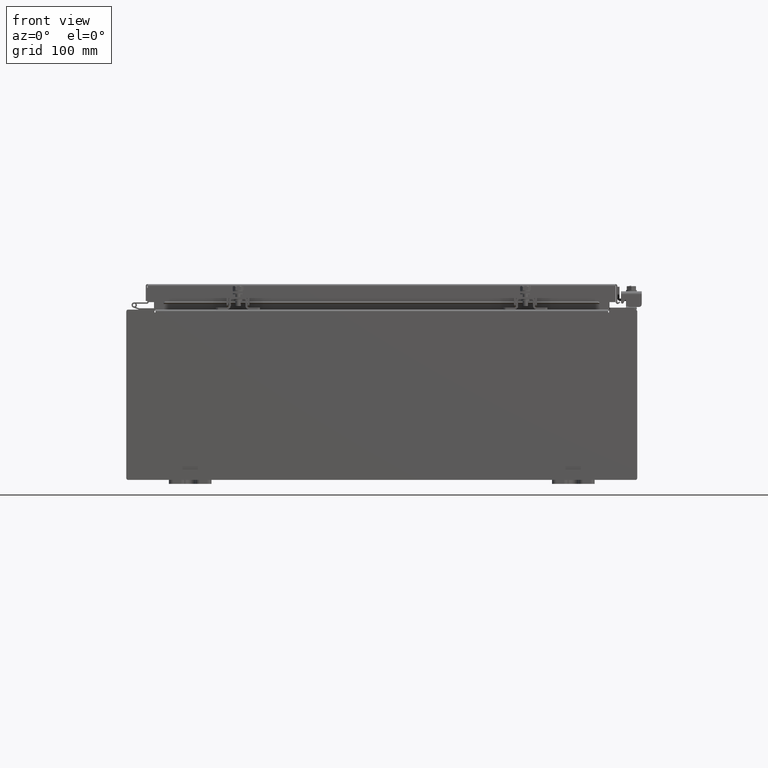
[diagram: clean part render]
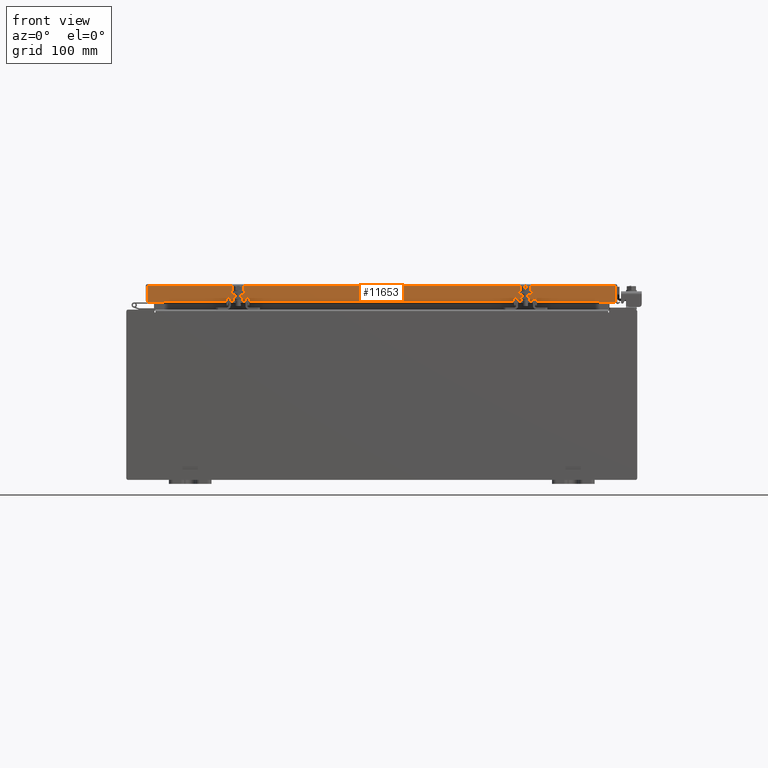
[diagram: same view with one face highlighted and labeled with its STEP entity id]
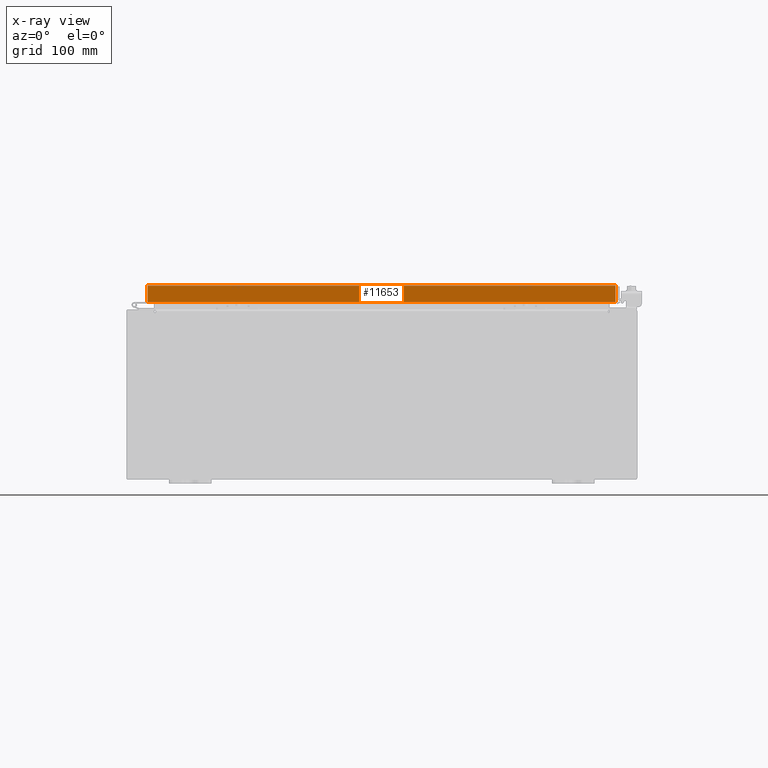
[diagram: x-ray of the same camera — body ghosted, the highlighted face saturated]
A machine part, front view. The second image highlights one B-rep face of the part: STEP entity #11653.
The next image is the same camera in x-ray: the body ghosted, the highlighted face saturated — about 0% of this face is hidden behind the body in this view.
In plain terms, the highlighted planar face has unit normal (-0, 1, -0).
Its self-contained STEP definition (entity closure, byte-faithful):
#459 = LINE ( 'NONE', #17098, #6451 ) ;
#523 = ORIENTED_EDGE ( 'NONE', *, *, #13499, .F. ) ;
#695 = FACE_OUTER_BOUND ( 'NONE', #25079, .T. ) ;
#1280 = EDGE_CURVE ( 'NONE', #8908, #23066, #459, .T. ) ;
#1516 = CARTESIAN_POINT ( 'NONE',  ( 3.160798841411881500E-030, -9.093999999999999400, 2.589571694958342600E-014 ) ) ;
#2321 = CARTESIAN_POINT ( 'NONE',  ( 10.98915786437626700, -9.093999999999999400, -0.08770000000000007000 ) ) ;
#2804 = ORIENTED_EDGE ( 'NONE', *, *, #21851, .F. ) ;
#3032 = DIRECTION ( 'NONE',  ( -1.000000000000000000, 0.0000000000000000000, 0.0000000000000000000 ) ) ;
#3919 = CARTESIAN_POINT ( 'NONE',  ( 10.98915786437626900, -9.093999999999999400, -0.07469999999999978000 ) ) ;
#4535 = ORIENTED_EDGE ( 'NONE', *, *, #15246, .F. ) ;
#4556 = CARTESIAN_POINT ( 'NONE',  ( -10.98915786437626700, -9.094000000000001200, -0.8499999999999969800 ) ) ;
#5231 = CARTESIAN_POINT ( 'NONE',  ( -10.98915786437626700, -9.093999999999999400, -0.08770000000000007000 ) ) ;
#5920 = VERTEX_POINT ( 'NONE', #26131 ) ;
#6451 = VECTOR ( 'NONE', #27696, 39.37007874015748100 ) ;
#6740 = DIRECTION ( 'NONE',  ( -1.000000000000000000, 4.379057701015054300E-047, 1.233005954894504400E-016 ) ) ;
#7288 = VECTOR ( 'NONE', #20427, 39.37007874015748100 ) ;
#7432 = CARTESIAN_POINT ( 'NONE',  ( 10.98915786437626900, -9.094000000000001200, -0.8499999999999996400 ) ) ;
#8337 = PLANE ( 'NONE',  #23451 ) ;
#8908 = VERTEX_POINT ( 'NONE', #5231 ) ;
#10076 = VECTOR ( 'NONE', #22464, 39.37007874015748100 ) ;
#10102 = LINE ( 'NONE', #3919, #22964 ) ;
#10529 = LINE ( 'NONE', #20400, #28755 ) ;
#10624 = DIRECTION ( 'NONE',  ( -3.475696988576954000E-031, 1.000000000000000000, -2.818880942772360100E-015 ) ) ;
#10952 = VECTOR ( 'NONE', #3032, 39.37007874015748100 ) ;
#11404 = EDGE_CURVE ( 'NONE', #20921, #5920, #29183, .T. ) ;
#11421 = ORIENTED_EDGE ( 'NONE', *, *, #21500, .T. ) ;
#11653 = ADVANCED_FACE ( 'NONE', ( #695 ), #8337, .F. ) ;
#13499 = EDGE_CURVE ( 'NONE', #5920, #25984, #10529, .T. ) ;
#14381 = LINE ( 'NONE', #15836, #7288 ) ;
#15246 = EDGE_CURVE ( 'NONE', #26143, #20921, #16139, .T. ) ;
#15565 = CARTESIAN_POINT ( 'NONE',  ( 11.07799999999999900, -9.094000000000001200, -0.8499999999999996400 ) ) ;
#15836 = CARTESIAN_POINT ( 'NONE',  ( -10.98915786437626900, -9.093999999999999400, 2.589571694958342600E-014 ) ) ;
#16139 = LINE ( 'NONE', #15565, #10076 ) ;
#16157 = CARTESIAN_POINT ( 'NONE',  ( 10.23915786437626700, -9.093999999999997600, -0.8500000000000012000 ) ) ;
#17098 = CARTESIAN_POINT ( 'NONE',  ( 11.07799999999999900, -9.093999999999999400, -0.08770000000000007000 ) ) ;
#17506 = DIRECTION ( 'NONE',  ( -0.0000000000000000000, -2.818880942772360100E-015, -1.000000000000000000 ) ) ;
#17913 = ORIENTED_EDGE ( 'NONE', *, *, #1280, .F. ) ;
#20400 = CARTESIAN_POINT ( 'NONE',  ( 11.07799999999999900, -9.094000000000001200, -0.8499999999999996400 ) ) ;
#20427 = DIRECTION ( 'NONE',  ( 0.0000000000000000000, -2.818880942772360100E-015, -1.000000000000000000 ) ) ;
#20921 = VERTEX_POINT ( 'NONE', #16157 ) ;
#21500 = EDGE_CURVE ( 'NONE', #8908, #25984, #14381, .T. ) ;
#21851 = EDGE_CURVE ( 'NONE', #23066, #26143, #10102, .T. ) ;
#22464 = DIRECTION ( 'NONE',  ( -1.000000000000000000, 4.379057701015054300E-047, 1.233005954894504400E-016 ) ) ;
#22964 = VECTOR ( 'NONE', #17506, 39.37007874015748100 ) ;
#23066 = VERTEX_POINT ( 'NONE', #2321 ) ;
#23451 = AXIS2_PLACEMENT_3D ( 'NONE', #1516, #10624, #26575 ) ;
#23516 = CARTESIAN_POINT ( 'NONE',  ( 10.23915786437626700, -9.093999999999997600, -0.8500000000000012000 ) ) ;
#25079 = EDGE_LOOP ( 'NONE', ( #17913, #11421, #523, #26568, #4535, #2804 ) ) ;
#25984 = VERTEX_POINT ( 'NONE', #4556 ) ;
#26131 = CARTESIAN_POINT ( 'NONE',  ( -10.23915786437626700, -9.093999999999997600, -0.8500000000000012000 ) ) ;
#26143 = VERTEX_POINT ( 'NONE', #7432 ) ;
#26568 = ORIENTED_EDGE ( 'NONE', *, *, #11404, .F. ) ;
#26575 = DIRECTION ( 'NONE',  ( 0.0000000000000000000, 2.818880942772360100E-015, 1.000000000000000000 ) ) ;
#27696 = DIRECTION ( 'NONE',  ( 1.000000000000000000, 3.475696988576954000E-031, -9.473942235605634900E-046 ) ) ;
#28755 = VECTOR ( 'NONE', #6740, 39.37007874015748100 ) ;
#29183 = LINE ( 'NONE', #23516, #10952 ) ;